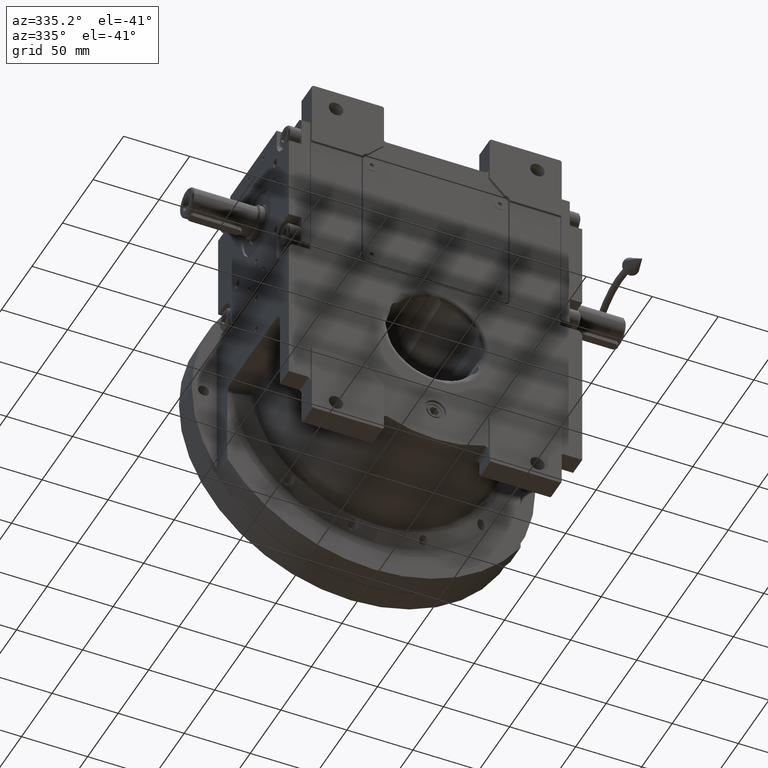
[diagram: clean part render]
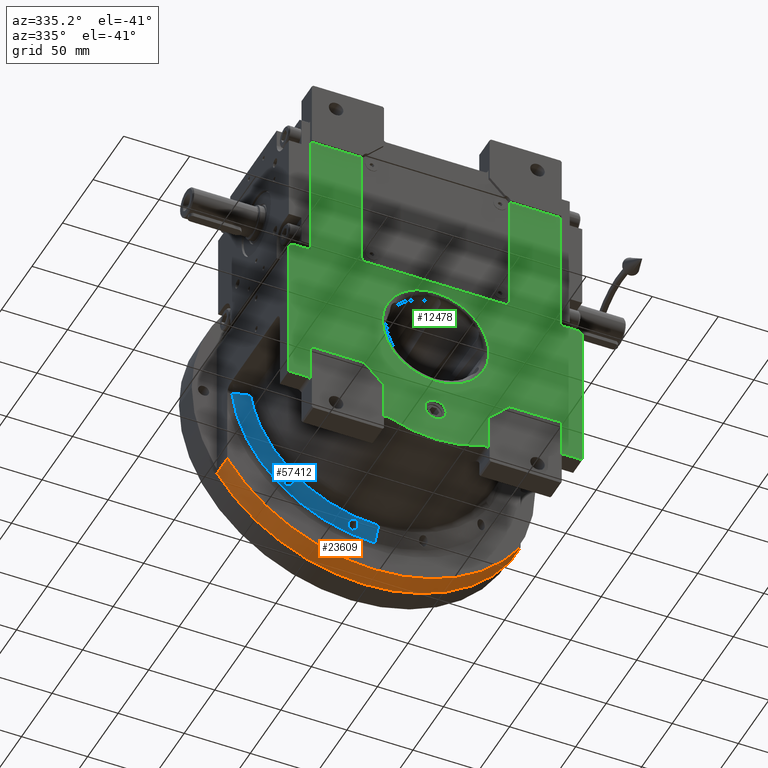
[diagram: same view with three faces highlighted in distinct colors, each labeled with its STEP entity id]
A machine part, auxiliary view with three faces highlighted in distinct colors.
Their STEP definitions:

[orange] entity #23609 — the highlighted cylindrical surface (partial cylindrical patch) has radius 132 mm, axis along (0, -1, 0).
#1316 = CYLINDRICAL_SURFACE ( 'NONE', #64078, 132.0000000000000000 ) ;
#6288 = CARTESIAN_POINT ( 'NONE',  ( -111.0000000000000000, 47.50000000000000000, -71.43528539874399996 ) ) ;
#6984 = DIRECTION ( 'NONE',  ( 0.000000000000000000, 1.000000000000000000, 0.000000000000000000 ) ) ;
#7184 = DIRECTION ( 'NONE',  ( 0.000000000000000000, -1.000000000000000000, 0.000000000000000000 ) ) ;
#7357 = VERTEX_POINT ( 'NONE', #20358 ) ;
#9637 = VECTOR ( 'NONE', #25505, 1000.000000000000000 ) ;
#9792 = ORIENTED_EDGE ( 'NONE', *, *, #26896, .T. ) ;
#12847 = VERTEX_POINT ( 'NONE', #52532 ) ;
#13461 = EDGE_CURVE ( 'NONE', #12847, #59550, #34225, .T. ) ;
#14891 = CARTESIAN_POINT ( 'NONE',  ( 7.105427357600998703E-15, 64.50000000000000000, 0.000000000000000000 ) ) ;
#20358 = CARTESIAN_POINT ( 'NONE',  ( -111.0000000000000000, 64.50000000000000000, -71.43528539874399996 ) ) ;
#20972 = EDGE_CURVE ( 'NONE', #61126, #7357, #41484, .T. ) ;
#20981 = CARTESIAN_POINT ( 'NONE',  ( 111.0000000000000000, 64.50000000000000000, -71.43528539874399996 ) ) ;
#23065 = CARTESIAN_POINT ( 'NONE',  ( -4.517455316885850268E-28, -53.50000000000000000, 0.000000000000000000 ) ) ;
#23609 = ADVANCED_FACE ( 'NONE', ( #48202 ), #1316, .T. ) ;
#24828 = CARTESIAN_POINT ( 'NONE',  ( 0.000000000000000000, 47.50000000000000000, 4.263256414560599853E-14 ) ) ;
#25505 = DIRECTION ( 'NONE',  ( 0.000000000000000000, 1.000000000000000000, 8.359326303060000099E-16 ) ) ;
#26896 = EDGE_CURVE ( 'NONE', #59550, #7357, #32500, .T. ) ;
#28574 = DIRECTION ( 'NONE',  ( 1.000000000000000000, 0.000000000000000000, 0.000000000000000000 ) ) ;
#32500 = LINE ( 'NONE', #6288, #55027 ) ;
#34225 = CIRCLE ( 'NONE', #36360, 131.9999999999999716 ) ;
#35936 = DIRECTION ( 'NONE',  ( 0.000000000000000000, 1.000000000000000000, 0.000000000000000000 ) ) ;
#36360 = AXIS2_PLACEMENT_3D ( 'NONE', #24828, #40703, #61729 ) ;
#40703 = DIRECTION ( 'NONE',  ( 0.000000000000000000, 1.000000000000000000, 0.000000000000000000 ) ) ;
#41484 = CIRCLE ( 'NONE', #50287, 132.0000000000000853 ) ;
#43304 = ORIENTED_EDGE ( 'NONE', *, *, #65172, .F. ) ;
#46839 = CARTESIAN_POINT ( 'NONE',  ( 111.0000000000000000, 47.50000000000000000, -71.43528539874399996 ) ) ;
#48202 = FACE_OUTER_BOUND ( 'NONE', #57687, .T. ) ;
#48738 = ORIENTED_EDGE ( 'NONE', *, *, #13461, .T. ) ;
#50287 = AXIS2_PLACEMENT_3D ( 'NONE', #14891, #35936, #66633 ) ;
#52532 = CARTESIAN_POINT ( 'NONE',  ( 111.0000000000000000, 47.50000000000000000, -71.43528539874399996 ) ) ;
#54193 = CARTESIAN_POINT ( 'NONE',  ( -111.0000000000000000, 47.50000000000000000, -71.43528539874399996 ) ) ;
#55027 = VECTOR ( 'NONE', #6984, 1000.000000000000000 ) ;
#56516 = LINE ( 'NONE', #46839, #9637 ) ;
#57687 = EDGE_LOOP ( 'NONE', ( #9792, #63323, #43304, #48738 ) ) ;
#59550 = VERTEX_POINT ( 'NONE', #54193 ) ;
#61126 = VERTEX_POINT ( 'NONE', #20981 ) ;
#61729 = DIRECTION ( 'NONE',  ( 0.8409090909090902732, 0.000000000000000000, -0.5411764045359401809 ) ) ;
#63323 = ORIENTED_EDGE ( 'NONE', *, *, #20972, .F. ) ;
#64078 = AXIS2_PLACEMENT_3D ( 'NONE', #23065, #7184, #28574 ) ;
#65172 = EDGE_CURVE ( 'NONE', #12847, #61126, #56516, .T. ) ;
#66633 = DIRECTION ( 'NONE',  ( 0.8409090909090906063, 0.000000000000000000, -0.5411764045359397368 ) ) ;

[blue] entity #57412 — the highlighted conical surface has half-angle 60 deg.
#60 = CARTESIAN_POINT ( 'NONE',  ( -15.50875018745248646, 41.15558517863380672, -99.00369999937544208 ) ) ;
#300 = CARTESIAN_POINT ( 'NONE',  ( -67.78784862725862581, 42.04911731647565176, -75.89227737039405497 ) ) ;
#400 = CARTESIAN_POINT ( 'NONE',  ( -18.38536429704581820, 40.90473766381333576, -98.06815401260659826 ) ) ;
#648 = CARTESIAN_POINT ( 'NONE',  ( -69.59944930781109917, 43.84506854104964901, -78.44480737441226381 ) ) ;
#752 = CARTESIAN_POINT ( 'NONE',  ( -14.76207105432758482, 41.71291943372650479, -100.0936571922661074 ) ) ;
#1507 = EDGE_CURVE ( 'NONE', #64486, #62108, #37018, .T. ) ;
#1840 = CARTESIAN_POINT ( 'NONE',  ( -14.64265084683891693, 43.05376670292849894, -102.4577565763923985 ) ) ;
#2047 = VERTEX_POINT ( 'NONE', #21791 ) ;
#2278 = CARTESIAN_POINT ( 'NONE',  ( -63.11494495267615434, 42.28433410427398087, -80.33939148501819716 ) ) ;
#2380 = CARTESIAN_POINT ( 'NONE',  ( -64.86470266221473935, 40.88449624298377216, -75.76931417373737077 ) ) ;
#2511 = CARTESIAN_POINT ( 'NONE',  ( -14.88239009849064942, 43.40788852445106016, -103.0430006522040287 ) ) ;
#2699 = CARTESIAN_POINT ( 'NONE',  ( -65.48034236420474485, 41.03252004531695007, -75.57725033378187618 ) ) ;
#2966 = VERTEX_POINT ( 'NONE', #30126 ) ;
#3199 = CARTESIAN_POINT ( 'NONE',  ( -18.80055132970501930, 44.72215395728382958, -104.7142789570583830 ) ) ;
#3524 =( BOUNDED_CURVE ( )  B_SPLINE_CURVE ( 3, ( #28641, #35183, #18984, #60316 ),
 .UNSPECIFIED., .F., .F. ) 
 B_SPLINE_CURVE_WITH_KNOTS ( ( 4, 4 ),
 ( 3.142973286274644895, 4.560897222382970462 ),
 .UNSPECIFIED. ) 
 CURVE ( )  GEOMETRIC_REPRESENTATION_ITEM ( )  RATIONAL_B_SPLINE_CURVE ( ( 1.000000000000000000, 0.8393587277169034522, 0.8393587277169034522, 1.000000000000000000 ) ) 
 REPRESENTATION_ITEM ( '' )  );
#3867 = CARTESIAN_POINT ( 'NONE',  ( -17.67824520509845598, 44.67650587190777145, -104.8293008482791322 ) ) ;
#3907 = CARTESIAN_POINT ( 'NONE',  ( -21.26467281662556985, 42.89495385219974111, -101.0096492284983043 ) ) ;
#4203 = CARTESIAN_POINT ( 'NONE',  ( -19.08425922301002942, 44.69644400183336330, -104.6175784297161613 ) ) ;
#4244 = CARTESIAN_POINT ( 'NONE',  ( -21.28576229969385025, 43.13789616174320685, -101.4351985602574047 ) ) ;
#4446 = ORIENTED_EDGE ( 'NONE', *, *, #14648, .T. ) ;
#4541 = CARTESIAN_POINT ( 'NONE',  ( -18.97115414708276759, 44.70779545303662417, -104.6581295405401022 ) ) ;
#4579 = CARTESIAN_POINT ( 'NONE',  ( -20.42896873382872869, 41.76146683889194122, -99.17831591914084299 ) ) ;
#4637 = CARTESIAN_POINT ( 'NONE',  ( -66.76033598893540955, 44.46409153863007901, -82.25981218219514801 ) ) ;
#4812 = CARTESIAN_POINT ( 'NONE',  ( -69.60712379771349845, 44.04619344483090515, -78.90257764125479412 ) ) ;
#4967 = CARTESIAN_POINT ( 'NONE',  ( -67.09574597167642196, 44.55287856368668287, -82.18504234988787971 ) ) ;
#5253 = CARTESIAN_POINT ( 'NONE',  ( -19.50531534579709003, 41.24072978416599256, -98.44479798004677207 ) ) ;
#5315 = CARTESIAN_POINT ( 'NONE',  ( -69.60921372108985850, 44.24267680355247734, -79.35455392805745589 ) ) ;
#5493 = CARTESIAN_POINT ( 'NONE',  ( -69.02838006662868509, 43.00276300549116115, -76.99872403390141073 ) ) ;
#5588 = CARTESIAN_POINT ( 'NONE',  ( -16.79663474786736188, 40.82552868253295486, -98.21344451296076272 ) ) ;
#5925 = CARTESIAN_POINT ( 'NONE',  ( -14.72909111186169184, 41.75546887470282797, -100.1730061314239890 ) ) ;
#6114 = B_SPLINE_CURVE_WITH_KNOTS ( 'NONE', 3,
 ( #4812, #648, #21706, #26179, #42738, #5493, #16534, #25831, #16874, #26528, #37907, #46851, #47542, #20681, #300, #42382, #41696, #62742, #15497, #57525, #10325, #55102, #59926, #48573, #28602, #7906, #39621, #59600, #2699, #28932, #22748, #7565, #38936, #2380, #54424, #43774, #27567, #7209, #18613, #49925, #49593, #64792, #39271, #17594, #23745, #23420, #12720, #44440, #33762, #12046 ),
 .UNSPECIFIED., .F., .F.,
 ( 4, 2, 2, 2, 2, 2, 1, 1, 2, 2, 2, 1, 1, 2, 2, 2, 1, 1, 2, 2, 2, 2, 2, 2, 1, 1, 2, 2, 4 ),
 ( 0.000000000000000000, 0.1250000000000126010, 0.1875000000000179856, 0.2187500000000215106, 0.2500000000000250355, 0.3125000000000333622, 0.3437500000000375810, 0.3593750000000397460, 0.3671875000000401346, 0.3750000000000405231, 0.4375000000000418554, 0.4687500000000425771, 0.4843750000000416889, 0.4921875000000395239, 0.5000000000000373035, 0.5625000000000409672, 0.5937500000000415223, 0.6093750000000428546, 0.6171875000000442979, 0.6250000000000457412, 0.6875000000000496270, 0.7187500000000521805, 0.7500000000000546230, 0.8125000000000593969, 0.8437500000000622835, 0.8593750000000613953, 0.8671875000000599520, 0.8750000000000585088, 1.000000000000000000 ),
 .UNSPECIFIED. ) ;
#7209 = CARTESIAN_POINT ( 'NONE',  ( -64.05729598748679621, 40.80156697721873371, -76.26540628826786872 ) ) ;
#7565 = CARTESIAN_POINT ( 'NONE',  ( -65.14875795603359165, 40.94856935376207474, -75.67138386566044517 ) ) ;
#7715 = CARTESIAN_POINT ( 'NONE',  ( -16.09584310531350582, 44.24629050097539107, -104.3300419873280589 ) ) ;
#7906 = CARTESIAN_POINT ( 'NONE',  ( -66.21423811792537606, 41.27496981589291636, -75.49464004436904929 ) ) ;
#8384 = CARTESIAN_POINT ( 'NONE',  ( -19.90598198968850241, 44.53132110200656513, -104.1732168648850205 ) ) ;
#8842 = DIRECTION ( 'NONE',  ( 0.000000000000000000, 0.000000000000000000, -1.000000000000000000 ) ) ;
#9415 = CARTESIAN_POINT ( 'NONE',  ( -20.71967630857076870, 42.00738003604246984, -99.55309717966524374 ) ) ;
#9477 = CARTESIAN_POINT ( 'NONE',  ( -69.60712379771349845, 44.04619344483090515, -78.90257764125479412 ) ) ;
#9712 = CARTESIAN_POINT ( 'NONE',  ( -21.28703621184340733, 43.37778208841554317, -101.8594750587018609 ) ) ;
#9814 = CARTESIAN_POINT ( 'NONE',  ( -68.44614220625969381, 44.72958614862602644, -81.46407423724764385 ) ) ;
#10086 = CARTESIAN_POINT ( 'NONE',  ( -15.27328899026993092, 41.27385452186081238, -99.24771501489367154 ) ) ;
#10144 = CARTESIAN_POINT ( 'NONE',  ( -67.54522719715143353, 44.65145069251460797, -82.03760044057291623 ) ) ;
#10325 = CARTESIAN_POINT ( 'NONE',  ( -66.82312795616010703, 41.53371599020356086, -75.55544187858374983 ) ) ;
#10420 = CARTESIAN_POINT ( 'NONE',  ( -18.09331083431307263, 40.85859617777224884, -98.04109495310648015 ) ) ;
#10480 = CARTESIAN_POINT ( 'NONE',  ( -69.31562911541794847, 44.53390166796806682, -80.27819381254568043 ) ) ;
#10600 = EDGE_CURVE ( 'NONE', #52601, #35669, #25447, .T. ) ;
#10766 = CARTESIAN_POINT ( 'NONE',  ( -17.73097330528007731, 40.81449223383904723, -98.02991740592824499 ) ) ;
#11102 = CARTESIAN_POINT ( 'NONE',  ( -14.87947116490785504, 41.57852984715079714, -99.84097251891604685 ) ) ;
#11447 = CARTESIAN_POINT ( 'NONE',  ( -16.62494767699519116, 40.84514056900765411, -98.27710281745677889 ) ) ;
#12046 = CARTESIAN_POINT ( 'NONE',  ( -62.80712379771359366, 41.52342507202660471, -78.90257764125469464 ) ) ;
#12532 = CARTESIAN_POINT ( 'NONE',  ( -15.35746372829867923, 43.82795239511310115, -103.7087961787889014 ) ) ;
#12720 = CARTESIAN_POINT ( 'NONE',  ( -63.08391339580369817, 41.02004609416165692, -77.56080104227457639 ) ) ;
#12860 = CARTESIAN_POINT ( 'NONE',  ( -14.48666419497512692, 42.57763028470709799, -101.6469742920354093 ) ) ;
#13023 = ORIENTED_EDGE ( 'NONE', *, *, #14435, .T. ) ;
#13200 = CARTESIAN_POINT ( 'NONE',  ( -16.34057181366540235, 44.34432175079520277, -104.4637949725579631 ) ) ;
#13575 = CARTESIAN_POINT ( 'NONE',  ( -19.81200341095583184, 41.38053623416616489, -98.63054741338582687 ) ) ;
#13640 = CARTESIAN_POINT ( 'NONE',  ( -9.237055564881299892E-14, -16.12399904833045028, -8.171241461241149613E-14 ) ) ;
#13875 = CARTESIAN_POINT ( 'NONE',  ( -18.03876888054717753, 44.71765732841326013, -104.8404434510402439 ) ) ;
#14375 = AXIS2_PLACEMENT_3D ( 'NONE', #13640, #40203, #8842 ) ;
#14413 = CARTESIAN_POINT ( 'NONE',  ( -6.107335892911600708E-14, 46.16024936020976099, -108.8793717567185979 ) ) ;
#14435 = EDGE_CURVE ( 'NONE', #62108, #64486, #6114, .T. ) ;
#14553 = CARTESIAN_POINT ( 'NONE',  ( -104.2458755376282511, 43.94632228155251141, -13.01284608142500154 ) ) ;
#14648 = EDGE_CURVE ( 'NONE', #35669, #50587, #55054, .T. ) ;
#14652 = CARTESIAN_POINT ( 'NONE',  ( -64.65925856944872407, 43.55754528270143311, -81.93021994396826813 ) ) ;
#14985 = CARTESIAN_POINT ( 'NONE',  ( -68.70751525441890806, 44.71856507938093017, -81.21901228298945341 ) ) ;
#15258 = CARTESIAN_POINT ( 'NONE',  ( -14.48469479762536771, 42.21143044104459818, -101.0065443675093633 ) ) ;
#15323 = CARTESIAN_POINT ( 'NONE',  ( -68.86200656688704669, 44.69762216092903628, -81.04044131007844953 ) ) ;
#15497 = CARTESIAN_POINT ( 'NONE',  ( -67.29305091126853711, 41.76445607495875834, -75.67290740426270190 ) ) ;
#15591 = CARTESIAN_POINT ( 'NONE',  ( -15.13798122035731097, 41.36044991069221055, -99.42011109997082485 ) ) ;
#15617 = CARTESIAN_POINT ( 'NONE',  ( -69.60712379771349845, 44.04619344483090515, -78.90257764125479412 ) ) ;
#15934 = CARTESIAN_POINT ( 'NONE',  ( -15.57188141827978534, 41.12625136255478253, -98.94237495083918077 ) ) ;
#16283 = CARTESIAN_POINT ( 'NONE',  ( -19.67434926625081459, 41.31338681511606126, -98.53953226742360982 ) ) ;
#16534 = CARTESIAN_POINT ( 'NONE',  ( -68.96826150227877861, 42.94293900535480901, -76.91345645266756037 ) ) ;
#16647 = LINE ( 'NONE', #54534, #60893 ) ;
#16874 = CARTESIAN_POINT ( 'NONE',  ( -68.76969739065823717, 42.75981871087341801, -76.66549293274911747 ) ) ;
#17594 = CARTESIAN_POINT ( 'NONE',  ( -63.15935403792212810, 40.97343432763176452, -77.39523273953560079 ) ) ;
#18162 = CARTESIAN_POINT ( 'NONE',  ( -63.63404868279544502, 42.82636693248890225, -81.12541142282891826 ) ) ;
#18613 = CARTESIAN_POINT ( 'NONE',  ( -63.96432609739975561, 40.80200084720957676, -76.34437861805801617 ) ) ;
#18754 = CARTESIAN_POINT ( 'NONE',  ( -16.41490999849959564, 44.37192262617112704, -104.5005325385906332 ) ) ;
#18796 = CARTESIAN_POINT ( 'NONE',  ( -20.41225874826803377, 41.74893943512567773, -99.15960365666485643 ) ) ;
#18949 = CARTESIAN_POINT ( 'NONE',  ( -108.2181486248951927, 46.16020982646139714, -11.98056577044130044 ) ) ;
#18984 = CARTESIAN_POINT ( 'NONE',  ( -89.14033501822824235, 39.87903545553515983, -65.00782844006340611 ) ) ;
#19525 = FACE_OUTER_BOUND ( 'NONE', #29939, .T. ) ;
#19796 = CARTESIAN_POINT ( 'NONE',  ( -20.98053380437553983, 42.29725401803037244, -100.0115089158826720 ) ) ;
#19858 = CARTESIAN_POINT ( 'NONE',  ( -69.06369080703318275, 44.64581447481833720, -80.75035122830743717 ) ) ;
#20173 = CARTESIAN_POINT ( 'NONE',  ( -63.68872352311440466, 42.87383470173428890, -81.18701644432728415 ) ) ;
#20506 = CARTESIAN_POINT ( 'NONE',  ( -69.29082736863422554, 44.54848433061275870, -80.33296053711940488 ) ) ;
#20681 = CARTESIAN_POINT ( 'NONE',  ( -67.85742529607996687, 42.09172163265807853, -75.92907241657195527 ) ) ;
#20778 = CARTESIAN_POINT ( 'NONE',  ( -19.11578677600110865, 41.09078561751286429, -98.25677951409356581 ) ) ;
#21116 = CARTESIAN_POINT ( 'NONE',  ( -18.55685797365245548, 40.94082675640963487, -98.09941162123259062 ) ) ;
#21453 = CARTESIAN_POINT ( 'NONE',  ( -15.44515782730545972, 41.18639484296321740, -99.06764912312088711 ) ) ;
#21592 = EDGE_LOOP ( 'NONE', ( #13023, #65319 ) ) ;
#21706 = CARTESIAN_POINT ( 'NONE',  ( -69.51818005364366115, 43.63219868441785110, -78.02327286184319632 ) ) ;
#21791 = CARTESIAN_POINT ( 'NONE',  ( -21.28576229969385025, 43.13789616174320685, -101.4351985602574047 ) ) ;
#22748 = CARTESIAN_POINT ( 'NONE',  ( -65.20379773486391173, 40.96163226148118497, -75.65383477414046354 ) ) ;
#22893 = CARTESIAN_POINT ( 'NONE',  ( -14.67537095696359373, 43.11257204492451223, -102.5559673707499684 ) ) ;
#23020 = ORIENTED_EDGE ( 'NONE', *, *, #47016, .T. ) ;
#23230 = CARTESIAN_POINT ( 'NONE',  ( -15.30523906203252160, 43.78958099941509374, -103.6493347907393172 ) ) ;
#23325 = CARTESIAN_POINT ( 'NONE',  ( -63.20753063041613729, 42.40110194314259218, -80.52382021824632830 ) ) ;
#23420 = CARTESIAN_POINT ( 'NONE',  ( -63.09652565978431227, 41.01165996309254069, -77.53181523845177026 ) ) ;
#23745 = CARTESIAN_POINT ( 'NONE',  ( -63.12128478878985050, 40.99609896814161658, -77.47689744640864262 ) ) ;
#24576 = CARTESIAN_POINT ( 'NONE',  ( -17.73583314671017774, 44.68376693007574829, -104.8323296450161308 ) ) ;
#24900 = CARTESIAN_POINT ( 'NONE',  ( -20.32229869898583985, 44.36936778267003945, -103.8069289162966840 ) ) ;
#24942 = CARTESIAN_POINT ( 'NONE',  ( -21.20764128211236610, 42.71553423092938573, -100.7040799317437347 ) ) ;
#25238 = CARTESIAN_POINT ( 'NONE',  ( -19.61955841385792709, 44.61189838739642965, -104.3697133830653598 ) ) ;
#25279 = CARTESIAN_POINT ( 'NONE',  ( -20.63033031947024654, 41.92337690047073551, -99.42307032378499798 ) ) ;
#25447 = B_SPLINE_CURVE_WITH_KNOTS ( 'NONE', 3,
 ( #36267, #25572, #14553, #51087 ),
 .UNSPECIFIED., .F., .F.,
 ( 4, 4 ),
 ( 0.000000000000000000, 1.000000000000000000 ),
 .UNSPECIFIED. ) ;
#25572 = CARTESIAN_POINT ( 'NONE',  ( -100.4589447431849436, 41.85258171595715027, -13.99357272345444514 ) ) ;
#25662 = CARTESIAN_POINT ( 'NONE',  ( -63.84908069151232013, 43.01011091101933914, -81.36121926178569197 ) ) ;
#25831 = CARTESIAN_POINT ( 'NONE',  ( -68.83933982942379259, 42.82182288597580566, -76.74729285694229475 ) ) ;
#25999 = CARTESIAN_POINT ( 'NONE',  ( -66.92885746105687872, 44.51160760126284544, -82.22895676595210546 ) ) ;
#26179 = CARTESIAN_POINT ( 'NONE',  ( -69.28958993729051485, 43.29527647019445880, -77.44495037072735499 ) ) ;
#26281 = CARTESIAN_POINT ( 'NONE',  ( -19.35750598281732593, 41.18199661363515673, -98.37027750101459844 ) ) ;
#26528 = CARTESIAN_POINT ( 'NONE',  ( -68.55287735324341725, 42.57587634206521443, -76.43199053713945545 ) ) ;
#26968 = CARTESIAN_POINT ( 'NONE',  ( -17.37299495985725528, 40.79383213476273795, -98.05786431712239448 ) ) ;
#27567 = CARTESIAN_POINT ( 'NONE',  ( -64.24701864815639851, 40.80829146050929523, -76.12089171503521356 ) ) ;
#28397 = CARTESIAN_POINT ( 'NONE',  ( -14.56200319238054064, 42.87641215788772797, -102.1589670684577982 ) ) ;
#28602 = CARTESIAN_POINT ( 'NONE',  ( -66.47473322612175650, 41.38229406885031381, -75.51303032982036711 ) ) ;
#28641 = CARTESIAN_POINT ( 'NONE',  ( -9.226961790163737573E-14, 39.87903547113305081, -97.99999599669763484 ) ) ;
#28932 = CARTESIAN_POINT ( 'NONE',  ( -65.28648619756604887, 40.98176596937341998, -75.62859115545653310 ) ) ;
#29425 = CARTESIAN_POINT ( 'NONE',  ( -21.04165536412680382, 43.82386856158029786, -102.6992293690995695 ) ) ;
#29768 = ORIENTED_EDGE ( 'NONE', *, *, #10600, .T. ) ;
#29939 = EDGE_LOOP ( 'NONE', ( #54538, #23020, #29768, #4446 ) ) ;
#30091 = CARTESIAN_POINT ( 'NONE',  ( -16.87592498526322160, 44.52199599735879332, -104.6905886229498606 ) ) ;
#30126 = CARTESIAN_POINT ( 'NONE',  ( -9.226961790163737573E-14, 39.87903547113305081, -97.99999599669763484 ) ) ;
#30195 = CARTESIAN_POINT ( 'NONE',  ( -69.52021447572523982, 44.40017289342045359, -79.79522197411236561 ) ) ;
#31040 = CARTESIAN_POINT ( 'NONE',  ( -14.48576229969382112, 42.45651579625150163, -101.4351985602574047 ) ) ;
#31467 = CARTESIAN_POINT ( 'NONE',  ( -18.89560457488460798, 41.02289223686298669, -98.17965200776311008 ) ) ;
#31528 = CARTESIAN_POINT ( 'NONE',  ( -64.90545150930404361, 43.70041991443495277, -82.05113864408038182 ) ) ;
#31816 = CARTESIAN_POINT ( 'NONE',  ( -18.03590428052120131, 40.85087711241153841, -98.03807942498789885 ) ) ;
#32152 = CARTESIAN_POINT ( 'NONE',  ( -14.79556050282710622, 41.67173104606924028, -100.0166030222071925 ) ) ;
#32777 = B_SPLINE_CURVE_WITH_KNOTS ( 'NONE', 3,
 ( #4244, #56304, #3907, #24942, #45970, #46623, #66997, #62165, #41136, #19796, #56618, #9415, #25279, #56953, #51800, #4579, #18796, #39800, #60806, #13575, #16283, #5253, #37330, #52133, #26281, #20778, #31467, #21116, #400, #53153, #10420, #31816, #10766, #26968, #58321, #5588, #52826, #11447, #57965, #41801, #52482, #62839, #15934, #60, #67990, #21453, #10086, #15591, #57287, #11102, #32152, #752, #67651, #5925, #41465, #15258, #42479 ),
 .UNSPECIFIED., .F., .F.,
 ( 4, 2, 1, 1, 2, 2, 2, 1, 1, 2, 2, 2, 1, 1, 2, 2, 2, 1, 2, 2, 1, 1, 2, 2, 2, 1, 1, 2, 2, 2, 1, 1, 2, 2, 4 ),
 ( 0.000000000000000000, 0.06249999999998914757, 0.09374999999998255562, 0.1093749999999806821, 0.1171874999999786837, 0.1249999999999766853, 0.1874999999999735489, 0.2187499999999719669, 0.2343749999999697187, 0.2421874999999696909, 0.2499999999999696354, 0.3124999999999690248, 0.3437499999999678035, 0.3593749999999670264, 0.3671874999999674150, 0.3749999999999678590, 0.4374999999999742428, 0.4687499999999781286, 0.4843749999999802935, 0.4999999999999824585, 0.5624999999999940048, 0.5937499999999997780, 0.6093750000000032196, 0.6250000000000065503, 0.6875000000000204281, 0.7187500000000257572, 0.7343750000000283107, 0.7421875000000283107, 0.7500000000000283107, 0.8125000000000383027, 0.8437500000000435207, 0.8593750000000445199, 0.8671875000000435207, 0.8750000000000424105, 1.000000000000000000 ),
 .UNSPECIFIED. ) ;
#33235 = CARTESIAN_POINT ( 'NONE',  ( -14.50570845870224801, 42.69774368617310500, -101.8544003129921691 ) ) ;
#33762 = CARTESIAN_POINT ( 'NONE',  ( -62.80438983608020465, 41.31870101675670526, -78.45153727460031234 ) ) ;
#33911 = CARTESIAN_POINT ( 'NONE',  ( -15.95764705290686436, 44.18196428957369193, -104.2385230270173793 ) ) ;
#34938 = CARTESIAN_POINT ( 'NONE',  ( -20.97532366417316041, 43.90434492157198321, -102.8550672630393876 ) ) ;
#35183 = CARTESIAN_POINT ( 'NONE',  ( -50.67561381681266397, 39.87903546226575457, -97.99999599352845792 ) ) ;
#35286 = CARTESIAN_POINT ( 'NONE',  ( -20.19584969340419889, 44.42595808634818155, -103.9314742084429355 ) ) ;
#35383 = CARTESIAN_POINT ( 'NONE',  ( -62.89131099387164170, 41.94294624658914472, -79.76299823087541085 ) ) ;
#35599 = CARTESIAN_POINT ( 'NONE',  ( -20.49560609983234727, 44.28609036725635661, -103.6259769247353262 ) ) ;
#35669 = VERTEX_POINT ( 'NONE', #53950 ) ;
#35701 = CARTESIAN_POINT ( 'NONE',  ( -67.20663157078297445, 44.57900473858948232, -82.15286389290443481 ) ) ;
#35925 = CARTESIAN_POINT ( 'NONE',  ( -20.80927112594839556, 44.06598087751950032, -103.1744245509571130 ) ) ;
#36029 = CARTESIAN_POINT ( 'NONE',  ( -65.76939235611618528, 44.11210652336321658, -82.27512015974016890 ) ) ;
#36184 = CARTESIAN_POINT ( 'NONE',  ( -96.85709795745168549, 39.87903522507845366, -14.92320458950059958 ) ) ;
#36267 = CARTESIAN_POINT ( 'NONE',  ( -96.85709795745168549, 39.87903522507845366, -14.92320458950059958 ) ) ;
#36420 = CONICAL_SURFACE ( 'NONE', #14375, 1.000000000000000000, 1.047197088922029673 ) ;
#36688 = CARTESIAN_POINT ( 'NONE',  ( -64.38391404750127833, 43.38927535313252548, -81.77616167653845025 ) ) ;
#37018 = B_SPLINE_CURVE_WITH_KNOTS ( 'NONE', 3,
 ( #66717, #44671, #35383, #2278, #23325, #44344, #65702, #65360, #18162, #39179, #20173, #25662, #46682, #67708, #36688, #47031, #41193, #14652, #31528, #41527, #58027, #68049, #36029, #52547, #40868, #61898, #62228, #57347, #4637, #25999, #4967, #35701, #67379, #10144, #57015, #52192, #57683, #62565, #9814, #14985, #15323, #19858, #42200, #67055, #20506, #10480, #56680, #30195, #5315, #9477 ),
 .UNSPECIFIED., .F., .F.,
 ( 4, 2, 2, 1, 1, 2, 2, 2, 1, 2, 2, 2, 1, 1, 2, 2, 2, 1, 2, 2, 2, 2, 2, 2, 1, 1, 2, 2, 4 ),
 ( 0.000000000000000000, 0.1250000000000422717, 0.1875000000000629219, 0.2187500000000711098, 0.2343750000000764389, 0.2421875000000786593, 0.2500000000000808797, 0.3125000000000868750, 0.3437500000000894840, 0.3593750000000908718, 0.3750000000000922595, 0.4375000000000970335, 0.4687500000000986433, 0.4843750000000974221, 0.4921875000000952571, 0.5000000000000931477, 0.5625000000000769385, 0.5937500000000691669, 0.6093750000000649480, 0.6250000000000608402, 0.6875000000000526246, 0.7187500000000485167, 0.7500000000000444089, 0.8125000000000389688, 0.8437500000000353051, 0.8593750000000317524, 0.8671875000000296430, 0.8750000000000276446, 1.000000000000000000 ),
 .UNSPECIFIED. ) ;
#37330 = CARTESIAN_POINT ( 'NONE',  ( -19.43106196501958749, 41.21080904760351160, -98.40664260635351468 ) ) ;
#37907 = CARTESIAN_POINT ( 'NONE',  ( -68.39682589979072702, 42.45573547165578532, -76.29243621763488648 ) ) ;
#38698 = VERTEX_POINT ( 'NONE', #31040 ) ;
#38752 = CARTESIAN_POINT ( 'NONE',  ( -15.25333824352383161, 43.75040207178881957, -103.5883998608721726 ) ) ;
#38936 = CARTESIAN_POINT ( 'NONE',  ( -65.12248920160860166, 40.94248948602814409, -75.68010028655007204 ) ) ;
#39084 = CARTESIAN_POINT ( 'NONE',  ( -14.48576229969382112, 42.45651579625150163, -101.4351985602574047 ) ) ;
#39179 = CARTESIAN_POINT ( 'NONE',  ( -63.66985884709637844, 42.85760206404210493, -81.16608062581808269 ) ) ;
#39271 = CARTESIAN_POINT ( 'NONE',  ( -63.25470645955091697, 40.92528812985813857, -77.20965089476800358 ) ) ;
#39621 = CARTESIAN_POINT ( 'NONE',  ( -65.98596801263296641, 41.19107653462030783, -75.50142769519590047 ) ) ;
#39800 = CARTESIAN_POINT ( 'NONE',  ( -20.24195213083298484, 41.62385548680016001, -98.97344874618163146 ) ) ;
#39865 = FACE_BOUND ( 'NONE', #21592, .T. ) ;
#39955 = CARTESIAN_POINT ( 'NONE',  ( -101.7990064294248214, 46.16025384316066038, -69.96404336023731219 ) ) ;
#40203 = DIRECTION ( 'NONE',  ( 0.000000000000000000, 1.000000000000000000, 0.000000000000000000 ) ) ;
#40868 = CARTESIAN_POINT ( 'NONE',  ( -65.90604268119497533, 44.16779016119869539, -82.28928753140728247 ) ) ;
#41136 = CARTESIAN_POINT ( 'NONE',  ( -21.06803777068973105, 42.43558813399067020, -100.2379555580155710 ) ) ;
#41193 = CARTESIAN_POINT ( 'NONE',  ( -64.61342865939180058, 43.53034230200678678, -81.90636284041171677 ) ) ;
#41465 = CARTESIAN_POINT ( 'NONE',  ( -14.56338134256172623, 41.98219371904489350, -100.5942625939804742 ) ) ;
#41527 = CARTESIAN_POINT ( 'NONE',  ( -65.10830660749691390, 43.80786087564487730, -82.12791959394272112 ) ) ;
#41696 = CARTESIAN_POINT ( 'NONE',  ( -67.71859459580825558, 42.00727331307068368, -75.85695293083811919 ) ) ;
#41801 = CARTESIAN_POINT ( 'NONE',  ( -16.14736164171974409, 40.92851939991503230, -98.50325216349951063 ) ) ;
#42200 = CARTESIAN_POINT ( 'NONE',  ( -69.15702053396996973, 44.61481230465477665, -80.59974715041026627 ) ) ;
#42382 = CARTESIAN_POINT ( 'NONE',  ( -67.74111632397172400, 42.02079216950390617, -75.86823498472526239 ) ) ;
#42479 = CARTESIAN_POINT ( 'NONE',  ( -14.48576229969382112, 42.45651579625150163, -101.4351985602574047 ) ) ;
#42738 = CARTESIAN_POINT ( 'NONE',  ( -69.19560774908069334, 43.18003282724071568, -77.26115480791294488 ) ) ;
#43774 = CARTESIAN_POINT ( 'NONE',  ( -64.34507903640626125, 40.81538912432809241, -76.05411956434583942 ) ) ;
#43914 = CARTESIAN_POINT ( 'NONE',  ( -15.13784960877018904, 43.65752798455915951, -103.4427824038960892 ) ) ;
#44252 = CARTESIAN_POINT ( 'NONE',  ( -15.69129399241424316, 44.04692640415015603, -104.0425066127885998 ) ) ;
#44344 = CARTESIAN_POINT ( 'NONE',  ( -63.37391937386676943, 42.58071153090598671, -80.78868970775506853 ) ) ;
#44440 = CARTESIAN_POINT ( 'NONE',  ( -62.89322788485443283, 41.15352526273451872, -78.01376035383742646 ) ) ;
#44580 = CARTESIAN_POINT ( 'NONE',  ( -15.52711586277287203, 43.94838719704101493, -103.8945261759517820 ) ) ;
#44671 = CARTESIAN_POINT ( 'NONE',  ( -62.81439731020464734, 41.72724188669391054, -79.34799604412170027 ) ) ;
#45054 = EDGE_CURVE ( 'NONE', #2966, #50587, #16647, .T. ) ;
#45108 = ORIENTED_EDGE ( 'NONE', *, *, #63434, .T. ) ;
#45265 = CARTESIAN_POINT ( 'NONE',  ( -16.65576477377504006, 44.45798922382349616, -104.6135469630497710 ) ) ;
#45428 = CARTESIAN_POINT ( 'NONE',  ( -62.80712379771359366, 41.52342507202660471, -78.90257764125469464 ) ) ;
#45928 = CARTESIAN_POINT ( 'NONE',  ( -21.20972011232749210, 43.60209097489686769, -102.2726500134179588 ) ) ;
#45970 = CARTESIAN_POINT ( 'NONE',  ( -21.17229993334808213, 42.62628893877541003, -100.5535551311820797 ) ) ;
#46264 = CARTESIAN_POINT ( 'NONE',  ( -20.04400066310544659, 44.48641859808112997, -104.0675785357199743 ) ) ;
#46580 = CARTESIAN_POINT ( 'NONE',  ( -19.41475688465490279, 44.65331294770840742, -104.4810056941321790 ) ) ;
#46623 = CARTESIAN_POINT ( 'NONE',  ( -21.11923272435063126, 42.52298233860456378, -100.3818718903396245 ) ) ;
#46682 = CARTESIAN_POINT ( 'NONE',  ( -64.00370762632122990, 43.12877342400288683, -81.50114351143491831 ) ) ;
#46851 = CARTESIAN_POINT ( 'NONE',  ( -68.14583657145338691, 42.27925522923568025, -76.10688848307425758 ) ) ;
#47016 = EDGE_CURVE ( 'NONE', #2966, #52601, #3524, .T. ) ;
#47031 = CARTESIAN_POINT ( 'NONE',  ( -64.52069125341098754, 43.47410091460231740, -81.85543528737092345 ) ) ;
#47542 = CARTESIAN_POINT ( 'NONE',  ( -68.01611235160906688, 42.19194787382414802, -76.02005988187434582 ) ) ;
#48573 = CARTESIAN_POINT ( 'NONE',  ( -66.50025254475291092, 41.39294889860050120, -75.51514955326899781 ) ) ;
#49388 = CARTESIAN_POINT ( 'NONE',  ( -15.34037488712204578, 43.81556156169592242, -103.6896300449257069 ) ) ;
#49593 = CARTESIAN_POINT ( 'NONE',  ( -63.54862053458841586, 40.83667992095885779, -76.76898789320883054 ) ) ;
#49925 = CARTESIAN_POINT ( 'NONE',  ( -63.70267625730842553, 40.81414458692709246, -76.59047803867358084 ) ) ;
#50068 = CARTESIAN_POINT ( 'NONE',  ( -16.39080945742552231, 44.36310321183741223, -104.4888525995157380 ) ) ;
#50221 = EDGE_LOOP ( 'NONE', ( #62119, #45108 ) ) ;
#50417 = CARTESIAN_POINT ( 'NONE',  ( -21.28576229969385025, 43.13789616174320685, -101.4351985602574047 ) ) ;
#50587 = VERTEX_POINT ( 'NONE', #63399 ) ;
#51086 = CARTESIAN_POINT ( 'NONE',  ( -17.21478838807860257, 44.59926085442815946, -104.7708600915680108 ) ) ;
#51087 = CARTESIAN_POINT ( 'NONE',  ( -108.2181486248951927, 46.16020982646139714, -11.98056577044130044 ) ) ;
#51419 = CARTESIAN_POINT ( 'NONE',  ( -18.39602248147717845, 44.73697642595696777, -104.8125220999484810 ) ) ;
#51800 = CARTESIAN_POINT ( 'NONE',  ( -20.46384103215330796, 41.78809794934888799, -99.21822417469445554 ) ) ;
#52133 = CARTESIAN_POINT ( 'NONE',  ( -19.38115713765209591, 41.19113255455904721, -98.38174806882180690 ) ) ;
#52192 = CARTESIAN_POINT ( 'NONE',  ( -68.06527903328293405, 44.71660584721222165, -81.75330711151792684 ) ) ;
#52482 = CARTESIAN_POINT ( 'NONE',  ( -15.86143996230702413, 41.01430585587212363, -98.70002577216995121 ) ) ;
#52547 = CARTESIAN_POINT ( 'NONE',  ( -65.85127273574883588, 44.14564530751782456, -82.28400234946296621 ) ) ;
#52601 = VERTEX_POINT ( 'NONE', #36184 ) ;
#52826 = CARTESIAN_POINT ( 'NONE',  ( -16.68307330778149122, 40.83781011218309942, -98.25437498801618119 ) ) ;
#53153 = CARTESIAN_POINT ( 'NONE',  ( -18.21057922783538174, 40.87606404266259830, -98.05015348996006708 ) ) ;
#53950 = CARTESIAN_POINT ( 'NONE',  ( -108.2181486248951927, 46.16020982646139714, -11.98056577044130044 ) ) ;
#54234 = CARTESIAN_POINT ( 'NONE',  ( -14.78864147528342166, 43.29175866863392486, -102.8532671433447945 ) ) ;
#54424 = CARTESIAN_POINT ( 'NONE',  ( -64.64903332278667847, 40.84788838230502250, -75.87015528424863930 ) ) ;
#54534 = CARTESIAN_POINT ( 'NONE',  ( -9.237055564881299892E-14, -16.12399904833045028, -1.000000000000081712 ) ) ;
#54538 = ORIENTED_EDGE ( 'NONE', *, *, #45054, .F. ) ;
#55054 =( BOUNDED_CURVE ( )  B_SPLINE_CURVE ( 3, ( #18949, #39955, #61660, #14413 ),
 .UNSPECIFIED., .F., .F. ) 
 B_SPLINE_CURVE_WITH_KNOTS ( ( 4, 4 ),
 ( 4.894359738531879778, 6.354897060524587360 ),
 .UNSPECIFIED. ) 
 CURVE ( )  GEOMETRIC_REPRESENTATION_ITEM ( )  RATIONAL_B_SPLINE_CURVE ( ( 1.000000000000000000, 0.8299968090623841555, 0.8299968090623841555, 1.000000000000000000 ) ) 
 REPRESENTATION_ITEM ( '' )  );
#55102 = CARTESIAN_POINT ( 'NONE',  ( -66.63557316265840313, 41.45053153927776179, -75.52883555357412604 ) ) ;
#55582 = CARTESIAN_POINT ( 'NONE',  ( -21.00882296343622357, 43.86467474679685807, -102.7780917750895782 ) ) ;
#56244 = B_SPLINE_CURVE_WITH_KNOTS ( 'NONE', 3,
 ( #39084, #12860, #33235, #28397, #60072, #1840, #22893, #60767, #54234, #2511, #59737, #43914, #38752, #23230, #49388, #12532, #44580, #44252, #33911, #7715, #65602, #13200, #50068, #18754, #45265, #30091, #51086, #56910, #56262, #3867, #24576, #13875, #51419, #3199, #4541, #4203, #62466, #46580, #25238, #8384, #46264, #35286, #61801, #67290, #24900, #35599, #66291, #35925, #61101, #34938, #55582, #67608, #29425, #45928, #9712, #50417 ),
 .UNSPECIFIED., .F., .F.,
 ( 4, 2, 1, 2, 2, 2, 1, 1, 2, 2, 2, 1, 1, 2, 2, 2, 1, 2, 2, 1, 1, 2, 2, 2, 1, 1, 2, 2, 2, 1, 1, 2, 2, 4 ),
 ( 0.000000000000000000, 0.06249999999999347744, 0.09374999999999225619, 0.1093749999999916872, 0.1249999999999911460, 0.1874999999999814593, 0.2187499999999770461, 0.2343749999999740485, 0.2421874999999714118, 0.2499999999999688027, 0.3124999999999572564, 0.3437499999999524269, 0.3593749999999503175, 0.3671874999999504285, 0.3749999999999504841, 0.4374999999999548694, 0.4687499999999577560, 0.4843749999999595879, 0.4999999999999614753, 0.5624999999999683586, 0.5937499999999721334, 0.6093749999999740208, 0.6249999999999759082, 0.6874999999999871214, 0.7187499999999930056, 0.7343749999999960032, 0.7421874999999971134, 0.7499999999999983347, 0.8124999999999988898, 0.8437499999999997780, 0.8593750000000002220, 0.8671875000000004441, 0.8750000000000005551, 1.000000000000000000 ),
 .UNSPECIFIED. ) ;
#56262 = CARTESIAN_POINT ( 'NONE',  ( -17.56108739389980755, 44.66012357116812836, -104.8202205420220707 ) ) ;
#56304 = CARTESIAN_POINT ( 'NONE',  ( -21.28449398870388976, 43.01580564899651904, -101.2193921216443044 ) ) ;
#56618 = CARTESIAN_POINT ( 'NONE',  ( -20.88604618175581251, 42.17867415054664804, -99.82147949796845410 ) ) ;
#56680 = CARTESIAN_POINT ( 'NONE',  ( -69.32818544909429193, 44.52608851574825621, -80.24946743667082671 ) ) ;
#56910 = CARTESIAN_POINT ( 'NONE',  ( -17.38637426212244819, 44.63320695715444231, -104.8021730608029856 ) ) ;
#56953 = CARTESIAN_POINT ( 'NONE',  ( -20.51538845011924650, 41.82825010524432940, -99.27859909169092134 ) ) ;
#57015 = CARTESIAN_POINT ( 'NONE',  ( -67.76099405477167181, 44.68589003584848030, -81.93691546389598557 ) ) ;
#57287 = CARTESIAN_POINT ( 'NONE',  ( -14.96126561534554433, 41.50362317198955964, -99.69754612150774165 ) ) ;
#57347 = CARTESIAN_POINT ( 'NONE',  ( -66.42122876507963269, 44.36073261308597182, -82.30411895984397574 ) ) ;
#57412 = ADVANCED_FACE ( 'NONE', ( #19525, #39865, #60870 ), #36420, .T. ) ;
#57525 = CARTESIAN_POINT ( 'NONE',  ( -66.98103439492290079, 41.60890245835828694, -75.58954542849022573 ) ) ;
#57683 = CARTESIAN_POINT ( 'NONE',  ( -68.16347946259398327, 44.72335391706063490, -81.68667453046511184 ) ) ;
#57965 = CARTESIAN_POINT ( 'NONE',  ( -16.35177585680262879, 40.88427153014217197, -98.39188398362193766 ) ) ;
#58027 = CARTESIAN_POINT ( 'NONE',  ( -65.42146648564371958, 43.95873420119437469, -82.21283163228740420 ) ) ;
#58321 = CARTESIAN_POINT ( 'NONE',  ( -16.96778701342184803, 40.80998175745905598, -98.15680085979037983 ) ) ;
#59401 = EDGE_CURVE ( 'NONE', #2047, #38698, #32777, .T. ) ;
#59600 = CARTESIAN_POINT ( 'NONE',  ( -65.64812529342107439, 41.08249569474566698, -75.54620890274522083 ) ) ;
#59737 = CARTESIAN_POINT ( 'NONE',  ( -15.04845669078737380, 43.57542461361651220, -103.3121052074970407 ) ) ;
#59926 = CARTESIAN_POINT ( 'NONE',  ( -66.55447645187153682, 41.41585243786412462, -75.52024901825220127 ) ) ;
#60072 = CARTESIAN_POINT ( 'NONE',  ( -14.59708217568884159, 42.96537098612393635, -102.3096059911111695 ) ) ;
#60316 = CARTESIAN_POINT ( 'NONE',  ( -96.85709795745168549, 39.87903522507845366, -14.92320458950059958 ) ) ;
#60767 = CARTESIAN_POINT ( 'NONE',  ( -14.69234904183704593, 43.14104743672896802, -102.6033608295535942 ) ) ;
#60806 = CARTESIAN_POINT ( 'NONE',  ( -20.07767688368522485, 41.52133102419982436, -98.82574960627741234 ) ) ;
#60870 = FACE_BOUND ( 'NONE', #50221, .T. ) ;
#60893 = VECTOR ( 'NONE', #65239, 1000.000000000000114 ) ;
#61101 = CARTESIAN_POINT ( 'NONE',  ( -20.89131294262858063, 43.99403358498545913, -103.0307058737528223 ) ) ;
#61660 = CARTESIAN_POINT ( 'NONE',  ( -58.33770022237654018, 46.16024937670292871, -108.8793721944054340 ) ) ;
#61801 = CARTESIAN_POINT ( 'NONE',  ( -20.25895421612055003, 44.39831624050118108, -103.8703955713336171 ) ) ;
#61898 = CARTESIAN_POINT ( 'NONE',  ( -65.93217163245451218, 44.17822466735806586, -82.29151393330606368 ) ) ;
#62108 = VERTEX_POINT ( 'NONE', #15617 ) ;
#62119 = ORIENTED_EDGE ( 'NONE', *, *, #59401, .T. ) ;
#62165 = CARTESIAN_POINT ( 'NONE',  ( -21.07655948565460591, 42.44952094383526031, -100.2608239445140157 ) ) ;
#62228 = CARTESIAN_POINT ( 'NONE',  ( -66.19240968444481155, 44.28072426235181780, -82.31044945415027314 ) ) ;
#62466 = CARTESIAN_POINT ( 'NONE',  ( -19.14182508336368116, 44.68970161066344815, -104.5951880476351050 ) ) ;
#62565 = CARTESIAN_POINT ( 'NONE',  ( -68.35332002664478068, 44.72986898887842244, -81.54261223423003457 ) ) ;
#62742 = CARTESIAN_POINT ( 'NONE',  ( -67.49600584932935021, 41.87506605974715512, -75.74868794563492713 ) ) ;
#62839 = CARTESIAN_POINT ( 'NONE',  ( -15.72365593661523597, 41.06205274667513550, -98.80584197496871468 ) ) ;
#63399 = CARTESIAN_POINT ( 'NONE',  ( -6.107335892911600708E-14, 46.16024936020976099, -108.8793717567185979 ) ) ;
#63434 = EDGE_CURVE ( 'NONE', #38698, #2047, #56244, .T. ) ;
#64486 = VERTEX_POINT ( 'NONE', #45428 ) ;
#64792 = CARTESIAN_POINT ( 'NONE',  ( -63.34765723381097047, 40.89214218333670203, -77.05904806786962524 ) ) ;
#65239 = DIRECTION ( 'NONE',  ( 0.000000000000000000, 0.5000004003414660891, -0.8660251726470620248 ) ) ;
#65319 = ORIENTED_EDGE ( 'NONE', *, *, #1507, .T. ) ;
#65360 = CARTESIAN_POINT ( 'NONE',  ( -63.58120486175232600, 42.77965354232971862, -81.06403058566984043 ) ) ;
#65602 = CARTESIAN_POINT ( 'NONE',  ( -16.26584008339917631, 44.31575046781813398, -104.4253884501384135 ) ) ;
#65702 = CARTESIAN_POINT ( 'NONE',  ( -63.46399101716926339, 42.67163078215280336, -80.91817936349353602 ) ) ;
#66291 = CARTESIAN_POINT ( 'NONE',  ( -20.63179147859929330, 44.20330385635097059, -103.4526908809163075 ) ) ;
#66717 = CARTESIAN_POINT ( 'NONE',  ( -62.80712379771359366, 41.52342507202660471, -78.90257764125469464 ) ) ;
#66997 = CARTESIAN_POINT ( 'NONE',  ( -21.09396469529720264, 42.47888227581890419, -100.3091316150683525 ) ) ;
#67055 = CARTESIAN_POINT ( 'NONE',  ( -69.25267561450084486, 44.56972103369125904, -80.41442999535578906 ) ) ;
#67290 = CARTESIAN_POINT ( 'NONE',  ( -20.30058444709403176, 44.37950385483397753, -103.8290665792478791 ) ) ;
#67379 = CARTESIAN_POINT ( 'NONE',  ( -67.25988290382591117, 44.59094884364967015, -82.13601500811972755 ) ) ;
#67608 = CARTESIAN_POINT ( 'NONE',  ( -21.03059944355404198, 43.83795414668691848, -102.7263971811898955 ) ) ;
#67651 = CARTESIAN_POINT ( 'NONE',  ( -14.74029468243483620, 41.74065502920740300, -100.1454236543688410 ) ) ;
#67708 = CARTESIAN_POINT ( 'NONE',  ( -64.25410358641379105, 43.30305935057343447, -81.68828093705425886 ) ) ;
#67990 = CARTESIAN_POINT ( 'NONE',  ( -15.46708741116452579, 41.17554552792183387, -99.04520887559122855 ) ) ;
#68049 = CARTESIAN_POINT ( 'NONE',  ( -65.58026375787545703, 44.03159883490280890, -82.24772289056708985 ) ) ;

[green] entity #12478 — the highlighted planar face has unit normal (0, 1, 0).
#274 = CIRCLE ( 'NONE', #26727, 4.000000000000003553 ) ;
#319 = EDGE_CURVE ( 'NONE', #44942, #52595, #50185, .T. ) ;
#804 = CARTESIAN_POINT ( 'NONE',  ( -111.0000000000000000, -53.50000000000000000, 41.00000000000000000 ) ) ;
#840 = VERTEX_POINT ( 'NONE', #32732 ) ;
#1075 = CARTESIAN_POINT ( 'NONE',  ( 37.00000000000000000, -53.50000000000000000, -88.58329413608420566 ) ) ;
#1398 = DIRECTION ( 'NONE',  ( 0.000000000000000000, -1.000000000000000000, 0.000000000000000000 ) ) ;
#1436 = CARTESIAN_POINT ( 'NONE',  ( 51.99999999999940314, -53.50000000000000000, 142.0000000000000000 ) ) ;
#1543 = VECTOR ( 'NONE', #60140, 1000.000000000000000 ) ;
#1591 = VECTOR ( 'NONE', #32806, 1000.000000000000000 ) ;
#1817 = DIRECTION ( 'NONE',  ( 0.000000000000000000, 0.000000000000000000, -1.000000000000000000 ) ) ;
#1899 = CARTESIAN_POINT ( 'NONE',  ( -80.61913312099703433, -53.49999999999999289, -40.30952624498007708 ) ) ;
#1952 = VERTEX_POINT ( 'NONE', #54178 ) ;
#2267 = CARTESIAN_POINT ( 'NONE',  ( 111.0000000000000000, -53.50000000000000000, 41.00000000000000000 ) ) ;
#2349 = DIRECTION ( 'NONE',  ( 1.000000000000000000, 0.000000000000000000, 0.000000000000000000 ) ) ;
#2526 = EDGE_CURVE ( 'NONE', #46827, #47665, #14335, .T. ) ;
#2639 = ORIENTED_EDGE ( 'NONE', *, *, #29928, .T. ) ;
#2806 = EDGE_LOOP ( 'NONE', ( #12954, #28193, #56605, #36068, #34066, #15297, #12661, #36489, #40514, #20213, #5769, #6290, #57732, #56896, #6916, #45154, #59950, #39333, #59699, #23182, #21637, #18845, #2639, #16745, #12251, #49777, #19003, #58652, #65135, #37357, #42342, #44290 ) ) ;
#2917 = CARTESIAN_POINT ( 'NONE',  ( -94.50000000000000000, -53.50000000000000000, 143.0000000000000000 ) ) ;
#3019 = VECTOR ( 'NONE', #50171, 1000.000000000000000 ) ;
#3069 = EDGE_CURVE ( 'NONE', #68097, #45654, #31132, .T. ) ;
#3204 = CIRCLE ( 'NONE', #37363, 3.999999999999996447 ) ;
#3402 = DIRECTION ( 'NONE',  ( -1.000000000000000000, 0.000000000000000000, 0.000000000000000000 ) ) ;
#4375 = CARTESIAN_POINT ( 'NONE',  ( -56.00000000000000000, -53.50000000000000000, 142.0000000000000000 ) ) ;
#4924 = DIRECTION ( 'NONE',  ( 0.000000000000000000, -1.000000000000000000, 0.000000000000000000 ) ) ;
#5065 = CARTESIAN_POINT ( 'NONE',  ( -97.50000000000000000, -53.50000000000000000, -71.43528539874409944 ) ) ;
#5325 = EDGE_CURVE ( 'NONE', #23042, #840, #27932, .T. ) ;
#5562 = VECTOR ( 'NONE', #51798, 1000.000000000000114 ) ;
#5769 = ORIENTED_EDGE ( 'NONE', *, *, #5325, .T. ) ;
#5967 = CARTESIAN_POINT ( 'NONE',  ( 94.50000000000000000, -53.50000000000000000, -45.00000000000000000 ) ) ;
#6290 = ORIENTED_EDGE ( 'NONE', *, *, #26620, .F. ) ;
#6335 = LINE ( 'NONE', #27722, #42608 ) ;
#6386 = CARTESIAN_POINT ( 'NONE',  ( -80.61913312124997333, -53.49999999999999289, 40.30955543265923069 ) ) ;
#6501 = AXIS2_PLACEMENT_3D ( 'NONE', #65801, #50610, #3402 ) ;
#6606 = DIRECTION ( 'NONE',  ( -0.3854166666666676289, 0.000000000000000000, 0.9227426472508761801 ) ) ;
#6766 = DIRECTION ( 'NONE',  ( 1.000000000000000000, 0.000000000000000000, 0.000000000000000000 ) ) ;
#6853 = FACE_OUTER_BOUND ( 'NONE', #2806, .T. ) ;
#6916 = ORIENTED_EDGE ( 'NONE', *, *, #43072, .F. ) ;
#7973 = DIRECTION ( 'NONE',  ( 0.000000000000000000, 0.000000000000000000, 1.000000000000000000 ) ) ;
#8028 = CIRCLE ( 'NONE', #11295, 4.000000000000978773 ) ;
#8092 = DIRECTION ( 'NONE',  ( 0.000000000000000000, -1.000000000000000000, 0.000000000000000000 ) ) ;
#8616 = EDGE_CURVE ( 'NONE', #67919, #24845, #12933, .T. ) ;
#8768 = EDGE_CURVE ( 'NONE', #14222, #67688, #9598, .T. ) ;
#8969 = VERTEX_POINT ( 'NONE', #37698 ) ;
#9202 = CARTESIAN_POINT ( 'NONE',  ( -1.264761546777279996E-10, -53.50000000000000000, 40.30959420574835406 ) ) ;
#9598 = CIRCLE ( 'NONE', #48104, 3.000000000000002665 ) ;
#9680 = DIRECTION ( 'NONE',  ( 0.000000000000000000, 0.000000000000000000, 1.000000000000000000 ) ) ;
#10376 = EDGE_CURVE ( 'NONE', #61961, #12159, #3204, .T. ) ;
#10898 = VECTOR ( 'NONE', #38996, 1000.000000000000000 ) ;
#11199 = VERTEX_POINT ( 'NONE', #21682 ) ;
#11226 = CARTESIAN_POINT ( 'NONE',  ( 97.50000000000000000, -53.50000000000000000, -74.43528539874399996 ) ) ;
#11295 = AXIS2_PLACEMENT_3D ( 'NONE', #60481, #8092, #23607 ) ;
#11322 = PLANE ( 'NONE',  #53881 ) ;
#11402 = CARTESIAN_POINT ( 'NONE',  ( 55.87298334620739837, -53.50000000000000000, 143.0000000000000000 ) ) ;
#11428 = DIRECTION ( 'NONE',  ( 1.000000000000000000, 0.000000000000000000, 1.387778780781246883E-14 ) ) ;
#11753 = LINE ( 'NONE', #48968, #1591 ) ;
#12159 = VERTEX_POINT ( 'NONE', #50324 ) ;
#12251 = ORIENTED_EDGE ( 'NONE', *, *, #40677, .T. ) ;
#12478 = ADVANCED_FACE ( 'NONE', ( #64768, #33069, #6853 ), #11322, .F. ) ;
#12660 = VERTEX_POINT ( 'NONE', #30856 ) ;
#12661 = ORIENTED_EDGE ( 'NONE', *, *, #28275, .F. ) ;
#12748 = VERTEX_POINT ( 'NONE', #804 ) ;
#12933 = LINE ( 'NONE', #60148, #41526 ) ;
#12954 = ORIENTED_EDGE ( 'NONE', *, *, #32255, .F. ) ;
#13087 = CARTESIAN_POINT ( 'NONE',  ( -107.0000000000000000, -53.50000000000000000, 41.00000000000000000 ) ) ;
#13253 = DIRECTION ( 'NONE',  ( -1.000000000000000000, 0.000000000000000000, 0.000000000000000000 ) ) ;
#13332 = EDGE_CURVE ( 'NONE', #19159, #12660, #60000, .T. ) ;
#13962 = VECTOR ( 'NONE', #6766, 1000.000000000000000 ) ;
#14222 = VERTEX_POINT ( 'NONE', #39696 ) ;
#14335 = LINE ( 'NONE', #40552, #25364 ) ;
#14367 = CARTESIAN_POINT ( 'NONE',  ( 80.61913312125007280, -53.49999999999999289, -40.30955543265933727 ) ) ;
#14642 = VECTOR ( 'NONE', #35582, 1000.000000000000000 ) ;
#14697 = CARTESIAN_POINT ( 'NONE',  ( -55.00000000000000000, -53.50000000000000000, -45.00000000000000000 ) ) ;
#14842 = CARTESIAN_POINT ( 'NONE',  ( 55.00000000000000000, -53.50000000000000000, -45.00000000000000000 ) ) ;
#14898 = DIRECTION ( 'NONE',  ( 1.000000000000000000, 0.000000000000000000, 0.000000000000000000 ) ) ;
#14974 =( BOUNDED_CURVE ( )  B_SPLINE_CURVE ( 3, ( #64993, #1899, #6386, #38118 ),
 .UNSPECIFIED., .F., .F. ) 
 B_SPLINE_CURVE_WITH_KNOTS ( ( 4, 4 ),
 ( 1.432582689913126872, 4.574174019572492256 ),
 .UNSPECIFIED. ) 
 CURVE ( )  GEOMETRIC_REPRESENTATION_ITEM ( )  RATIONAL_B_SPLINE_CURVE ( ( 1.000000000000000000, 0.3333337746434759108, 0.3333337746434759108, 1.000000000000000000 ) ) 
 REPRESENTATION_ITEM ( '' )  );
#15159 = CARTESIAN_POINT ( 'NONE',  ( -55.87298334620739837, -53.50000000000000000, 143.0000000000000000 ) ) ;
#15297 = ORIENTED_EDGE ( 'NONE', *, *, #2526, .F. ) ;
#15602 = CARTESIAN_POINT ( 'NONE',  ( 35.84375000000000000, -53.50000000000000000, -85.81506619433150718 ) ) ;
#15945 = DIRECTION ( 'NONE',  ( 0.000000000000000000, 0.000000000000000000, -1.000000000000000000 ) ) ;
#16064 = EDGE_CURVE ( 'NONE', #45654, #42836, #54616, .T. ) ;
#16126 = EDGE_CURVE ( 'NONE', #32027, #19982, #8028, .T. ) ;
#16160 = CARTESIAN_POINT ( 'NONE',  ( -107.0000000000000000, -53.50000000000000000, 45.00000000000000000 ) ) ;
#16745 = ORIENTED_EDGE ( 'NONE', *, *, #18044, .T. ) ;
#16851 = DIRECTION ( 'NONE',  ( 1.000000000000000000, 0.000000000000000000, 0.000000000000000000 ) ) ;
#16928 = DIRECTION ( 'NONE',  ( 1.000000000000000000, 0.000000000000000000, 0.000000000000000000 ) ) ;
#17002 = EDGE_CURVE ( 'NONE', #49177, #12748, #58713, .T. ) ;
#17003 = EDGE_CURVE ( 'NONE', #67688, #44942, #60957, .T. ) ;
#17564 = CARTESIAN_POINT ( 'NONE',  ( 0.000000000000000000, -53.50000000000000000, 0.000000000000000000 ) ) ;
#17649 =( BOUNDED_CURVE ( )  B_SPLINE_CURVE ( 3, ( #9202, #61939, #14367, #20216 ),
 .UNSPECIFIED., .F., .F. ) 
 B_SPLINE_CURVE_WITH_KNOTS ( ( 4, 4 ),
 ( 4.574175343352308687, 7.715766673011676957 ),
 .UNSPECIFIED. ) 
 CURVE ( )  GEOMETRIC_REPRESENTATION_ITEM ( )  RATIONAL_B_SPLINE_CURVE ( ( 1.000000000000000000, 0.3333337746434750226, 0.3333337746434750226, 1.000000000000000000 ) ) 
 REPRESENTATION_ITEM ( '' )  );
#17668 = CARTESIAN_POINT ( 'NONE',  ( 94.50000000000000000, -53.50000000000000000, -74.43528539874399996 ) ) ;
#18044 = EDGE_CURVE ( 'NONE', #46448, #11199, #36247, .T. ) ;
#18706 = CARTESIAN_POINT ( 'NONE',  ( 94.50000000000000000, -53.50000000000000000, -74.43528539874399996 ) ) ;
#18790 = VECTOR ( 'NONE', #7973, 1000.000000000000000 ) ;
#18830 = DIRECTION ( 'NONE',  ( -1.000000000000000000, 0.000000000000000000, 4.625929269271481378E-15 ) ) ;
#18845 = ORIENTED_EDGE ( 'NONE', *, *, #23764, .F. ) ;
#19003 = ORIENTED_EDGE ( 'NONE', *, *, #52846, .F. ) ;
#19159 = VERTEX_POINT ( 'NONE', #30918 ) ;
#19198 = DIRECTION ( 'NONE',  ( 0.000000000000000000, 0.000000000000000000, 1.000000000000000000 ) ) ;
#19475 = VERTEX_POINT ( 'NONE', #48626 ) ;
#19772 = CIRCLE ( 'NONE', #28580, 4.000000000000572875 ) ;
#19982 = VERTEX_POINT ( 'NONE', #4375 ) ;
#20213 = ORIENTED_EDGE ( 'NONE', *, *, #38264, .T. ) ;
#20216 = CARTESIAN_POINT ( 'NONE',  ( 1.264666971694413862E-10, -53.50000000000000000, -40.30959420574829721 ) ) ;
#20372 = VERTEX_POINT ( 'NONE', #2267 ) ;
#20479 = AXIS2_PLACEMENT_3D ( 'NONE', #1075, #23488, #6606 ) ;
#20708 = EDGE_CURVE ( 'NONE', #28363, #19475, #6335, .T. ) ;
#20787 = VECTOR ( 'NONE', #14898, 1000.000000000000000 ) ;
#20898 = CARTESIAN_POINT ( 'NONE',  ( -40.00000000000000000, -53.50000000000000000, -60.00000000000000000 ) ) ;
#21055 = CARTESIAN_POINT ( 'NONE',  ( 107.0000000000000000, -53.50000000000000000, 41.00000000000000000 ) ) ;
#21395 = LINE ( 'NONE', #31405, #51574 ) ;
#21637 = ORIENTED_EDGE ( 'NONE', *, *, #30302, .F. ) ;
#21682 = CARTESIAN_POINT ( 'NONE',  ( 111.0000000000000000, -53.50000000000000000, -71.43528539874399996 ) ) ;
#22035 = CARTESIAN_POINT ( 'NONE',  ( 1.264666971694413862E-10, -53.50000000000000000, -40.30959420574829721 ) ) ;
#22165 = EDGE_CURVE ( 'NONE', #12660, #63600, #19772, .T. ) ;
#22194 = VERTEX_POINT ( 'NONE', #36952 ) ;
#22658 = CARTESIAN_POINT ( 'NONE',  ( 40.00000000000000000, -53.50000000000000000, -60.00000000000000000 ) ) ;
#22830 = DIRECTION ( 'NONE',  ( 0.000000000000000000, -1.000000000000000000, 0.000000000000000000 ) ) ;
#22887 = CARTESIAN_POINT ( 'NONE',  ( -94.50000000000000000, -53.50000000000000000, 143.0000000000000000 ) ) ;
#22966 = CARTESIAN_POINT ( 'NONE',  ( -37.00000000000000000, -53.50000000000000000, -88.58329413608420566 ) ) ;
#23042 = VERTEX_POINT ( 'NONE', #5065 ) ;
#23182 = ORIENTED_EDGE ( 'NONE', *, *, #8616, .F. ) ;
#23472 = VERTEX_POINT ( 'NONE', #18706 ) ;
#23488 = DIRECTION ( 'NONE',  ( 0.000000000000000000, 1.000000000000000000, 0.000000000000000000 ) ) ;
#23551 = VERTEX_POINT ( 'NONE', #29722 ) ;
#23607 = DIRECTION ( 'NONE',  ( -0.9682458365518610277, 0.000000000000000000, 0.2499999999999737432 ) ) ;
#23764 = EDGE_CURVE ( 'NONE', #23472, #64077, #37642, .T. ) ;
#24615 = DIRECTION ( 'NONE',  ( 0.000000000000000000, 0.000000000000000000, -1.000000000000000000 ) ) ;
#24845 = VERTEX_POINT ( 'NONE', #22658 ) ;
#25364 = VECTOR ( 'NONE', #19198, 1000.000000000000000 ) ;
#25721 = DIRECTION ( 'NONE',  ( -1.000000000000000000, 0.000000000000000000, 1.734723475976808672E-15 ) ) ;
#26535 = VECTOR ( 'NONE', #9680, 1000.000000000000000 ) ;
#26620 = EDGE_CURVE ( 'NONE', #42836, #840, #34983, .T. ) ;
#26727 = AXIS2_PLACEMENT_3D ( 'NONE', #21055, #52068, #37602 ) ;
#27085 = DIRECTION ( 'NONE',  ( 0.000000000000000000, 1.000000000000000000, 0.000000000000000000 ) ) ;
#27374 = DIRECTION ( 'NONE',  ( 0.000000000000000000, 0.000000000000000000, -1.000000000000000000 ) ) ;
#27379 = DIRECTION ( 'NONE',  ( 0.000000000000000000, 0.000000000000000000, 1.000000000000000000 ) ) ;
#27426 = CIRCLE ( 'NONE', #6501, 8.000000000000000000 ) ;
#27608 = CARTESIAN_POINT ( 'NONE',  ( 94.50000000000000000, -53.50000000000000000, 143.0000000000000000 ) ) ;
#27722 = CARTESIAN_POINT ( 'NONE',  ( 94.50000000000000000, -53.50000000000000000, 143.0000000000000000 ) ) ;
#27778 = LINE ( 'NONE', #2917, #34624 ) ;
#27932 = CIRCLE ( 'NONE', #36717, 3.000000000000002665 ) ;
#28143 = EDGE_CURVE ( 'NONE', #20372, #8969, #274, .T. ) ;
#28193 = ORIENTED_EDGE ( 'NONE', *, *, #10376, .F. ) ;
#28272 = VECTOR ( 'NONE', #2349, 1000.000000000000000 ) ;
#28275 = EDGE_CURVE ( 'NONE', #49177, #46827, #21395, .T. ) ;
#28363 = VERTEX_POINT ( 'NONE', #27608 ) ;
#28484 = CARTESIAN_POINT ( 'NONE',  ( 55.87298334620739837, -53.50000000000000000, 143.0000000000000000 ) ) ;
#28580 = AXIS2_PLACEMENT_3D ( 'NONE', #1436, #22830, #11428 ) ;
#29588 = CARTESIAN_POINT ( 'NONE',  ( 94.50000000000000000, -53.50000000000000000, 45.00000000000000000 ) ) ;
#29722 = CARTESIAN_POINT ( 'NONE',  ( 8.000000000000000000, -53.50000000000000000, -66.00000000000000000 ) ) ;
#29819 = CARTESIAN_POINT ( 'NONE',  ( -94.50000000000000000, -53.50000000000000000, -45.00000000000000000 ) ) ;
#29928 = EDGE_CURVE ( 'NONE', #23472, #46448, #40504, .T. ) ;
#30302 = EDGE_CURVE ( 'NONE', #64077, #67919, #54475, .T. ) ;
#30856 = CARTESIAN_POINT ( 'NONE',  ( 56.00000000000000000, -53.50000000000000000, 142.0000000000000000 ) ) ;
#30918 = CARTESIAN_POINT ( 'NONE',  ( 56.00000000000000000, -53.50000000000000000, 53.00000000000000000 ) ) ;
#31132 = LINE ( 'NONE', #62161, #5562 ) ;
#31405 = CARTESIAN_POINT ( 'NONE',  ( -107.0000000000000000, -53.50000000000000000, 45.00000000000000000 ) ) ;
#31754 = CARTESIAN_POINT ( 'NONE',  ( -94.50000000000000000, -53.50000000000000000, 45.00000000000000000 ) ) ;
#32027 = VERTEX_POINT ( 'NONE', #15159 ) ;
#32255 = EDGE_CURVE ( 'NONE', #12159, #59304, #55346, .T. ) ;
#32732 = CARTESIAN_POINT ( 'NONE',  ( -94.50000000000000000, -53.50000000000000000, -74.43528539874409944 ) ) ;
#32806 = DIRECTION ( 'NONE',  ( 0.000000000000000000, 0.000000000000000000, -1.000000000000000000 ) ) ;
#33069 = FACE_BOUND ( 'NONE', #48066, .T. ) ;
#33122 = DIRECTION ( 'NONE',  ( -3.469446951953617344E-15, 0.000000000000000000, 1.000000000000000000 ) ) ;
#33193 = CARTESIAN_POINT ( 'NONE',  ( -35.84375000000000000, -53.50000000000000000, -85.81506619433150718 ) ) ;
#33307 = DIRECTION ( 'NONE',  ( -1.000000000000000000, 0.000000000000000000, 0.000000000000000000 ) ) ;
#34066 = ORIENTED_EDGE ( 'NONE', *, *, #61972, .F. ) ;
#34329 = DIRECTION ( 'NONE',  ( -0.7071067811865474617, 0.000000000000000000, -0.7071067811865474617 ) ) ;
#34624 = VECTOR ( 'NONE', #55308, 1000.000000000000000 ) ;
#34979 = CARTESIAN_POINT ( 'NONE',  ( 52.00000000000000000, -53.50000000000000000, 49.00000000000000000 ) ) ;
#34983 = LINE ( 'NONE', #29819, #56103 ) ;
#35129 = CARTESIAN_POINT ( 'NONE',  ( 111.0000000000000000, -53.50000000000000000, -71.43528539874399996 ) ) ;
#35582 = DIRECTION ( 'NONE',  ( 1.000000000000000000, 0.000000000000000000, 0.000000000000000000 ) ) ;
#35643 = CARTESIAN_POINT ( 'NONE',  ( -94.50000000000000000, -53.50000000000000000, -45.00000000000000000 ) ) ;
#35868 = ORIENTED_EDGE ( 'NONE', *, *, #55568, .F. ) ;
#35881 = VERTEX_POINT ( 'NONE', #62961 ) ;
#35885 = CARTESIAN_POINT ( 'NONE',  ( -40.00000000000000000, -53.50000000000000000, -88.58329413608420566 ) ) ;
#36038 = EDGE_CURVE ( 'NONE', #63600, #28363, #44003, .T. ) ;
#36068 = ORIENTED_EDGE ( 'NONE', *, *, #16126, .F. ) ;
#36247 = LINE ( 'NONE', #51067, #14642 ) ;
#36489 = ORIENTED_EDGE ( 'NONE', *, *, #17002, .T. ) ;
#36717 = AXIS2_PLACEMENT_3D ( 'NONE', #49402, #39098, #27379 ) ;
#36909 = DIRECTION ( 'NONE',  ( 1.000000000000000000, 0.000000000000000000, 0.000000000000000000 ) ) ;
#36952 = CARTESIAN_POINT ( 'NONE',  ( -8.000000000000000000, -53.50000000000000000, -66.00000000000000000 ) ) ;
#37357 = ORIENTED_EDGE ( 'NONE', *, *, #22165, .F. ) ;
#37363 = AXIS2_PLACEMENT_3D ( 'NONE', #41251, #51921, #25721 ) ;
#37384 = VECTOR ( 'NONE', #56108, 1000.000000000000000 ) ;
#37602 = DIRECTION ( 'NONE',  ( 1.000000000000000000, 0.000000000000000000, 5.204170427930416550E-15 ) ) ;
#37642 = LINE ( 'NONE', #17668, #53036 ) ;
#37698 = CARTESIAN_POINT ( 'NONE',  ( 107.0000000000000000, -53.50000000000000000, 45.00000000000000000 ) ) ;
#37738 = VECTOR ( 'NONE', #13253, 1000.000000000000000 ) ;
#38118 = CARTESIAN_POINT ( 'NONE',  ( -1.264761546777279996E-10, -53.50000000000000000, 40.30959420574835406 ) ) ;
#38264 = EDGE_CURVE ( 'NONE', #1952, #23042, #42114, .T. ) ;
#38931 = AXIS2_PLACEMENT_3D ( 'NONE', #54127, #56476, #40660 ) ;
#38996 = DIRECTION ( 'NONE',  ( -1.000000000000000000, 0.000000000000000000, 0.000000000000000000 ) ) ;
#39066 = CARTESIAN_POINT ( 'NONE',  ( -56.00000000000000000, -53.50000000000000000, 142.0000000000000000 ) ) ;
#39098 = DIRECTION ( 'NONE',  ( 0.000000000000000000, 1.000000000000000000, 0.000000000000000000 ) ) ;
#39145 = CARTESIAN_POINT ( 'NONE',  ( -111.0000000000000000, -53.50000000000000000, 41.00000000000000000 ) ) ;
#39333 = ORIENTED_EDGE ( 'NONE', *, *, #319, .T. ) ;
#39696 = CARTESIAN_POINT ( 'NONE',  ( -40.00000000000000000, -53.50000000000000000, -88.58329413608420566 ) ) ;
#40504 = CIRCLE ( 'NONE', #48194, 3.000000000000002665 ) ;
#40514 = ORIENTED_EDGE ( 'NONE', *, *, #45898, .T. ) ;
#40552 = CARTESIAN_POINT ( 'NONE',  ( -94.50000000000000000, -53.50000000000000000, 45.00000000000000000 ) ) ;
#40660 = DIRECTION ( 'NONE',  ( -0.3854166666666672403, 0.000000000000000000, -0.9227426472508764022 ) ) ;
#40677 = EDGE_CURVE ( 'NONE', #11199, #20372, #61298, .T. ) ;
#41058 = CIRCLE ( 'NONE', #54294, 3.999999999999996447 ) ;
#41113 = CARTESIAN_POINT ( 'NONE',  ( -111.0000000000000000, -53.50000000000000000, -71.43528539874409944 ) ) ;
#41164 = AXIS2_PLACEMENT_3D ( 'NONE', #44495, #1398, #16928 ) ;
#41251 = CARTESIAN_POINT ( 'NONE',  ( -52.00000000000000000, -53.50000000000000000, 53.00000000000000000 ) ) ;
#41526 = VECTOR ( 'NONE', #34329, 1000.000000000000114 ) ;
#42114 = LINE ( 'NONE', #41113, #20787 ) ;
#42195 = AXIS2_PLACEMENT_3D ( 'NONE', #13087, #59290, #33122 ) ;
#42342 = ORIENTED_EDGE ( 'NONE', *, *, #13332, .F. ) ;
#42566 = EDGE_LOOP ( 'NONE', ( #56646, #52261 ) ) ;
#42608 = VECTOR ( 'NONE', #27374, 1000.000000000000000 ) ;
#42836 = VERTEX_POINT ( 'NONE', #35643 ) ;
#43072 = EDGE_CURVE ( 'NONE', #14222, #68097, #52401, .T. ) ;
#43387 = CIRCLE ( 'NONE', #41164, 8.000000000000000000 ) ;
#44003 = LINE ( 'NONE', #28484, #13962 ) ;
#44290 = ORIENTED_EDGE ( 'NONE', *, *, #44875, .F. ) ;
#44495 = CARTESIAN_POINT ( 'NONE',  ( 8.881784197001250351E-16, -53.50000000000000000, -66.00000000000000000 ) ) ;
#44875 = EDGE_CURVE ( 'NONE', #59304, #19159, #41058, .T. ) ;
#44942 = VERTEX_POINT ( 'NONE', #15602 ) ;
#45154 = ORIENTED_EDGE ( 'NONE', *, *, #8768, .T. ) ;
#45623 = EDGE_CURVE ( 'NONE', #35881, #64344, #17649, .T. ) ;
#45654 = VERTEX_POINT ( 'NONE', #14697 ) ;
#45898 = EDGE_CURVE ( 'NONE', #12748, #1952, #54296, .T. ) ;
#45933 = EDGE_CURVE ( 'NONE', #64344, #35881, #14974, .T. ) ;
#46448 = VERTEX_POINT ( 'NONE', #59383 ) ;
#46462 = EDGE_CURVE ( 'NONE', #19982, #61961, #49023, .T. ) ;
#46827 = VERTEX_POINT ( 'NONE', #31754 ) ;
#47177 = CARTESIAN_POINT ( 'NONE',  ( 40.00000000000000000, -53.50000000000000000, -88.58329413608420566 ) ) ;
#47665 = VERTEX_POINT ( 'NONE', #22887 ) ;
#48066 = EDGE_LOOP ( 'NONE', ( #65066, #35868 ) ) ;
#48095 = EDGE_CURVE ( 'NONE', #23551, #22194, #43387, .T. ) ;
#48104 = AXIS2_PLACEMENT_3D ( 'NONE', #22966, #66363, #18830 ) ;
#48194 = AXIS2_PLACEMENT_3D ( 'NONE', #11226, #27085, #33307 ) ;
#48626 = CARTESIAN_POINT ( 'NONE',  ( 94.50000000000000000, -53.50000000000000000, 45.00000000000000000 ) ) ;
#48647 = DIRECTION ( 'NONE',  ( 0.000000000000000000, 0.000000000000000000, 1.000000000000000000 ) ) ;
#48746 = EDGE_CURVE ( 'NONE', #24845, #52595, #11753, .T. ) ;
#48968 = CARTESIAN_POINT ( 'NONE',  ( 40.00000000000000000, -53.50000000000000000, -60.00000000000000000 ) ) ;
#49023 = LINE ( 'NONE', #39066, #56742 ) ;
#49177 = VERTEX_POINT ( 'NONE', #16160 ) ;
#49402 = CARTESIAN_POINT ( 'NONE',  ( -97.50000000000000000, -53.50000000000000000, -74.43528539874409944 ) ) ;
#49566 = LINE ( 'NONE', #29588, #28272 ) ;
#49777 = ORIENTED_EDGE ( 'NONE', *, *, #28143, .T. ) ;
#50171 = DIRECTION ( 'NONE',  ( 1.000000000000000000, 0.000000000000000000, 0.000000000000000000 ) ) ;
#50185 = CIRCLE ( 'NONE', #20479, 3.000000000000003997 ) ;
#50324 = CARTESIAN_POINT ( 'NONE',  ( -52.00000000000000000, -53.50000000000000000, 49.00000000000000000 ) ) ;
#50610 = DIRECTION ( 'NONE',  ( 0.000000000000000000, -1.000000000000000000, 0.000000000000000000 ) ) ;
#51067 = CARTESIAN_POINT ( 'NONE',  ( 97.50000000000000000, -53.50000000000000000, -71.43528539874399996 ) ) ;
#51574 = VECTOR ( 'NONE', #36909, 1000.000000000000000 ) ;
#51798 = DIRECTION ( 'NONE',  ( -0.7071067811865474617, 0.000000000000000000, 0.7071067811865474617 ) ) ;
#51921 = DIRECTION ( 'NONE',  ( 0.000000000000000000, -1.000000000000000000, 0.000000000000000000 ) ) ;
#52068 = DIRECTION ( 'NONE',  ( 0.000000000000000000, -1.000000000000000000, 0.000000000000000000 ) ) ;
#52261 = ORIENTED_EDGE ( 'NONE', *, *, #45623, .T. ) ;
#52401 = LINE ( 'NONE', #35885, #26535 ) ;
#52595 = VERTEX_POINT ( 'NONE', #47177 ) ;
#52846 = EDGE_CURVE ( 'NONE', #19475, #8969, #49566, .T. ) ;
#53036 = VECTOR ( 'NONE', #48647, 1000.000000000000000 ) ;
#53373 = CARTESIAN_POINT ( 'NONE',  ( 94.50000000000000000, -53.50000000000000000, -45.00000000000000000 ) ) ;
#53375 = DIRECTION ( 'NONE',  ( -0.000000000000000000, 1.000000000000000000, 0.000000000000000000 ) ) ;
#53824 = CARTESIAN_POINT ( 'NONE',  ( 56.00000000000000000, -53.50000000000000000, 53.00000000000000000 ) ) ;
#53881 = AXIS2_PLACEMENT_3D ( 'NONE', #17564, #53375, #16851 ) ;
#54127 = CARTESIAN_POINT ( 'NONE',  ( 1.421085471520200056E-14, -53.50000000000000000, -4.263256414560599853E-14 ) ) ;
#54178 = CARTESIAN_POINT ( 'NONE',  ( -111.0000000000000000, -53.50000000000000000, -71.43528539874409944 ) ) ;
#54283 = CARTESIAN_POINT ( 'NONE',  ( -55.00000000000000000, -53.50000000000000000, -45.00000000000000000 ) ) ;
#54294 = AXIS2_PLACEMENT_3D ( 'NONE', #67338, #4924, #15945 ) ;
#54296 = LINE ( 'NONE', #39145, #1543 ) ;
#54475 = LINE ( 'NONE', #5967, #10898 ) ;
#54616 = LINE ( 'NONE', #54283, #37738 ) ;
#55308 = DIRECTION ( 'NONE',  ( 1.000000000000000000, 0.000000000000000000, 0.000000000000000000 ) ) ;
#55346 = LINE ( 'NONE', #65710, #3019 ) ;
#55568 = EDGE_CURVE ( 'NONE', #22194, #23551, #27426, .T. ) ;
#56103 = VECTOR ( 'NONE', #24615, 1000.000000000000000 ) ;
#56108 = DIRECTION ( 'NONE',  ( 6.319570704518680589E-16, 0.000000000000000000, 1.000000000000000000 ) ) ;
#56476 = DIRECTION ( 'NONE',  ( 0.000000000000000000, -1.000000000000000000, 0.000000000000000000 ) ) ;
#56605 = ORIENTED_EDGE ( 'NONE', *, *, #46462, .F. ) ;
#56646 = ORIENTED_EDGE ( 'NONE', *, *, #45933, .T. ) ;
#56742 = VECTOR ( 'NONE', #1817, 1000.000000000000000 ) ;
#56896 = ORIENTED_EDGE ( 'NONE', *, *, #3069, .F. ) ;
#57732 = ORIENTED_EDGE ( 'NONE', *, *, #16064, .F. ) ;
#58652 = ORIENTED_EDGE ( 'NONE', *, *, #20708, .F. ) ;
#58713 = CIRCLE ( 'NONE', #42195, 3.999999999999996447 ) ;
#59290 = DIRECTION ( 'NONE',  ( 0.000000000000000000, -1.000000000000000000, 0.000000000000000000 ) ) ;
#59304 = VERTEX_POINT ( 'NONE', #34979 ) ;
#59383 = CARTESIAN_POINT ( 'NONE',  ( 97.50000000000000000, -53.50000000000000000, -71.43528539874399996 ) ) ;
#59699 = ORIENTED_EDGE ( 'NONE', *, *, #48746, .F. ) ;
#59950 = ORIENTED_EDGE ( 'NONE', *, *, #17003, .T. ) ;
#60000 = LINE ( 'NONE', #53824, #18790 ) ;
#60140 = DIRECTION ( 'NONE',  ( 0.000000000000000000, 0.000000000000000000, -1.000000000000000000 ) ) ;
#60148 = CARTESIAN_POINT ( 'NONE',  ( 55.00000000000000000, -53.50000000000000000, -45.00000000000000000 ) ) ;
#60481 = CARTESIAN_POINT ( 'NONE',  ( -51.99999999999900524, -53.50000000000000000, 142.0000000000000000 ) ) ;
#60957 = CIRCLE ( 'NONE', #38931, 92.99999999999995737 ) ;
#61298 = LINE ( 'NONE', #35129, #37384 ) ;
#61939 = CARTESIAN_POINT ( 'NONE',  ( 80.61913312099713380, -53.49999999999999289, 40.30952624498025472 ) ) ;
#61961 = VERTEX_POINT ( 'NONE', #64657 ) ;
#61972 = EDGE_CURVE ( 'NONE', #47665, #32027, #27778, .T. ) ;
#62161 = CARTESIAN_POINT ( 'NONE',  ( -40.00000000000000000, -53.50000000000000000, -60.00000000000000000 ) ) ;
#62961 = CARTESIAN_POINT ( 'NONE',  ( -1.264761546777279996E-10, -53.50000000000000000, 40.30959420574835406 ) ) ;
#63600 = VERTEX_POINT ( 'NONE', #11402 ) ;
#64077 = VERTEX_POINT ( 'NONE', #53373 ) ;
#64344 = VERTEX_POINT ( 'NONE', #22035 ) ;
#64657 = CARTESIAN_POINT ( 'NONE',  ( -56.00000000000000000, -53.50000000000000000, 53.00000000000000000 ) ) ;
#64768 = FACE_BOUND ( 'NONE', #42566, .T. ) ;
#64993 = CARTESIAN_POINT ( 'NONE',  ( 1.264666971694413862E-10, -53.50000000000000000, -40.30959420574829721 ) ) ;
#65066 = ORIENTED_EDGE ( 'NONE', *, *, #48095, .F. ) ;
#65135 = ORIENTED_EDGE ( 'NONE', *, *, #36038, .F. ) ;
#65710 = CARTESIAN_POINT ( 'NONE',  ( -52.00000000000000000, -53.50000000000000000, 49.00000000000000000 ) ) ;
#65801 = CARTESIAN_POINT ( 'NONE',  ( -8.881784197001250351E-16, -53.50000000000000000, -66.00000000000000000 ) ) ;
#66363 = DIRECTION ( 'NONE',  ( 0.000000000000000000, 1.000000000000000000, 0.000000000000000000 ) ) ;
#67338 = CARTESIAN_POINT ( 'NONE',  ( 52.00000000000000000, -53.50000000000000000, 53.00000000000000000 ) ) ;
#67688 = VERTEX_POINT ( 'NONE', #33193 ) ;
#67919 = VERTEX_POINT ( 'NONE', #14842 ) ;
#68097 = VERTEX_POINT ( 'NONE', #20898 ) ;